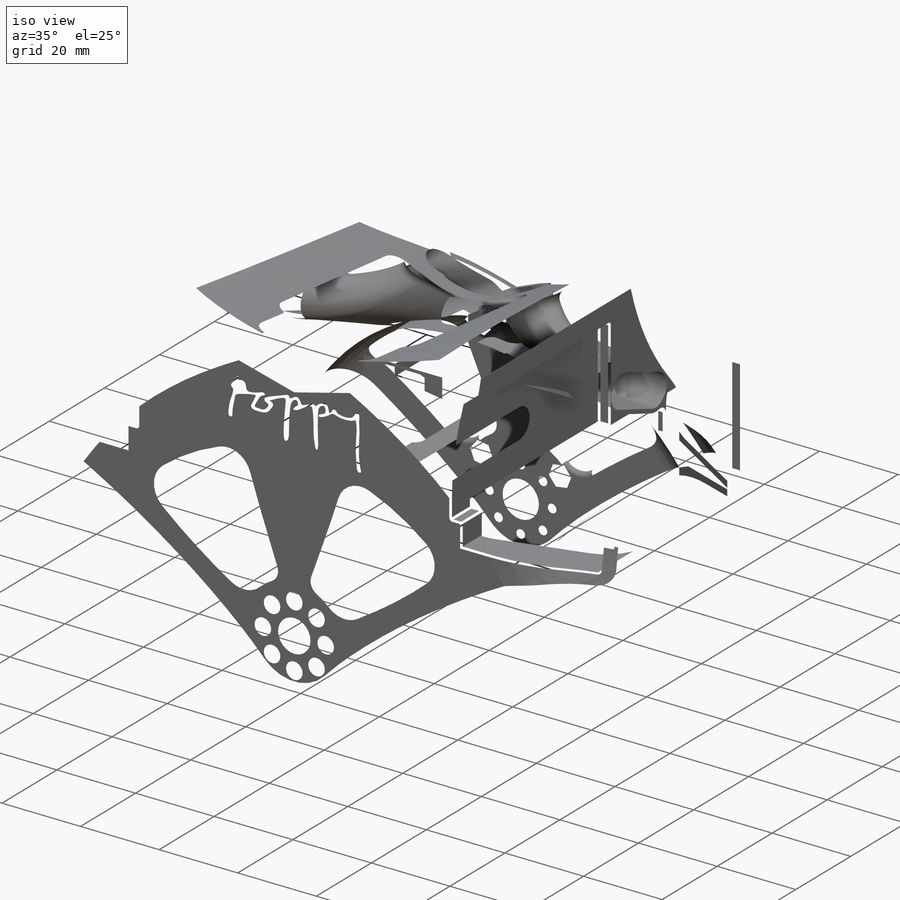
[diagram: iso view]
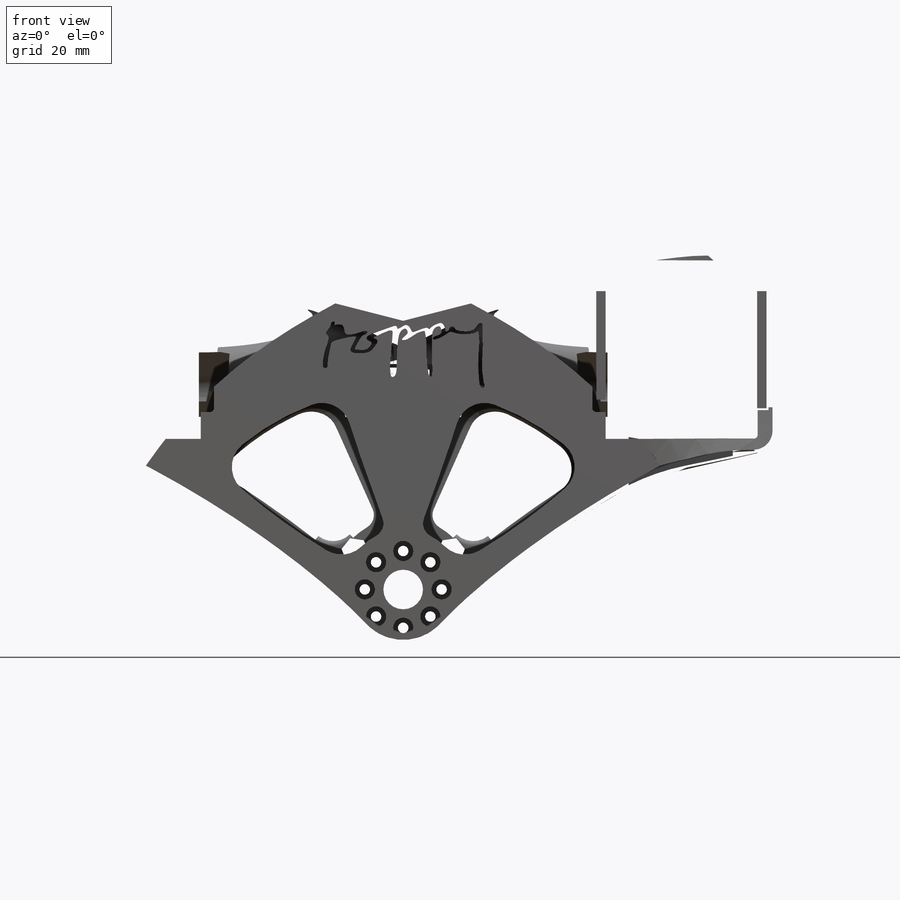
[diagram: front view]
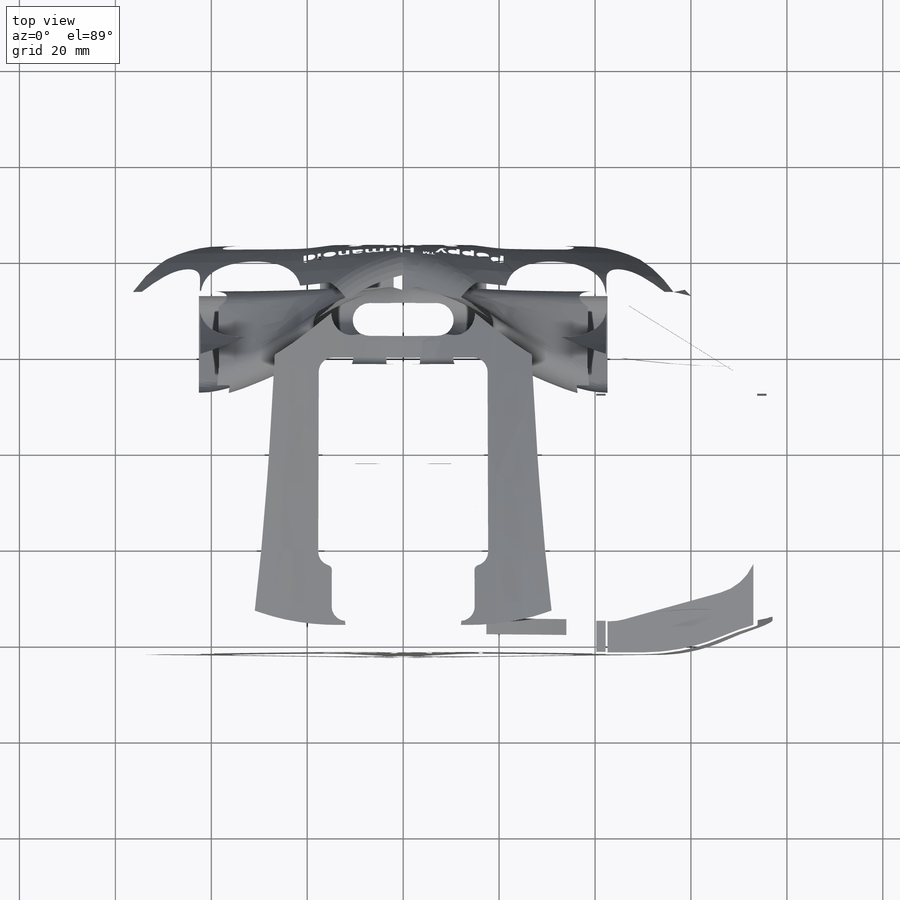
[diagram: top view]
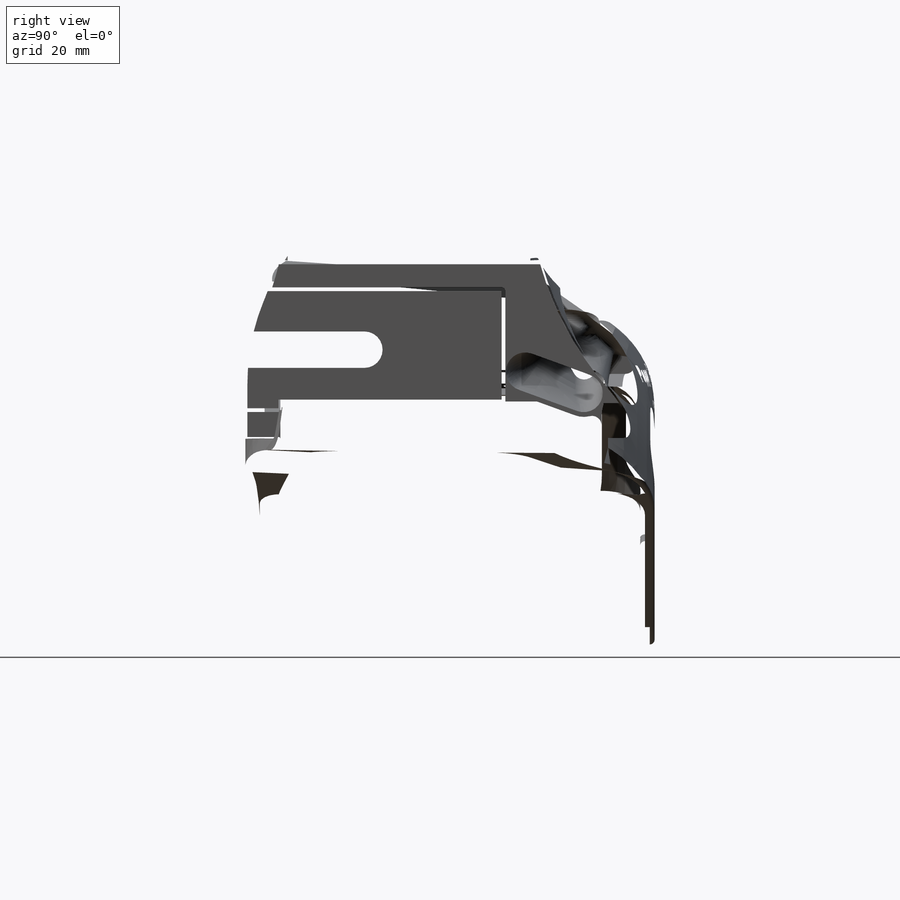
[diagram: right view]
SOLIDWORKS PART (.sldprt)
format: sldprt  version: not decoded by parser v0  size: 12,282,880 bytes
history: native  units: mm
features: sketch x51, fillet x36, plane x25, cut_extrude x21, extrude x6, boolean_combine x5, shell x3, hole x3, chamfer x2, mirror x2, material x1, revolve x1, move_body x1, sweep x1 + 7 further entries (+23 scaffold rows collapsed; 12 parser-record rows omitted)
feature tree (200):
  scaffold x23  (default folders/planes/origin — collapsed)
  material  "Polyamide"
  plane  "Plan de face"
  plane  "Plan de dessus"
  plane  "Plan de droite"
  sketch  "axis_positions"  dims[D1=57.5mm D2=61.5mm D3=50.0mm]
  "shoulder_y_axis"
  "bust_y_rotation_axis"
  plane  "shoulder_motor_middle_plane"  Offset=58mm
  plane  "frontal_rotation_plane"
  plane  "Plane5"  Offset=5mm
  "head_z_rotation_axis"
  plane  "double_rotation_horn_contact"  Offset=79.3mm
  plane  "rotation_limit"  Offset=43mm
  plane  "neck_motor_contact_plane"  Offset=4mm
  sketch  "Esquisse26"  dims[c1.D1=32.0mm c1.D2=1.0mm c1.D3=12.0mm c1.D4=26.3mm c1.D5=39.0mm c2.D2=11.5mm c2.D3=38.5mm c2.D5=36.0mm c3.D3=50.0mm c3.D6=2.0mm c3.D5=1.0mm]
  parser-record x12  (decoder bookkeeping rows leaked as tree rows — omitted from the tree; the rows remain in map.json)
  sketch  "shoulder_motor_front_dimensions"  dims[D7=22.0mm D8=16.0mm D10=2.5mm D16=3.0mm D1=12.0mm D2=50.6mm D3=33.0mm D4=24.4mm D5=35.6mm D6=30.0mm D11=17.0mm D12=17.0mm D13=4.5mm D14=17.0mm D15=35.8mm D9=8.0]
  plane  "shoulder_motor_top_plane"
  sketch  "shoulder_motor_top_dimensions"  dims[D1=4.5mm D2=15.0mm D3=17.75mm]
  sketch  "Sketch23"  dims[D1=4.0mm D2=3.5mm]
  plane  "shoulder_motor_top_contact"  Offset=67mm
  plane  "shoulder_motor_side_contact"  Offset=73mm
  sketch  "Esquisse4"  dims[c1.D1=2.0mm c1.D2=3.0mm c1.D3=11.5mm c2.D1=15.0mm c2.D4=2.0mm]
  revolve  "Révolution2"  Angle=100deg
  sketch  "Esquisse10"  dims[c1.D1=30.0mm c1.D2=35.5mm c1.D3=24.4mm c1.D4=35.6mm c1.D5=0.4mm c2.D1=0.4mm]
  plane  "side_tickness"  Offset=4mm
  sketch  "Esquisse5"  dims[c1.D1=1.5mm c1.D2=1.5mm c2.D1=3.0mm c2.D2=3.0mm c2.D3=12.0mm c2.D4=50.6mm c3.D1=2.0mm c3.D2=1.0mm c4.D1=2.0mm c4.D2=3.0mm]
  extrude  "Boss.-Extru.8"  [1 undecoded]
  sketch  "Esquisse12"  dims[c1.D1=22.0mm c1.D2=17.8mm c2.D1=1.0mm]
  sketch  "Esquisse11"  dims[D1=23.0mm D2=2.0mm]
  cut_extrude  "Enlèv. mat.-Extru.3"  [1 undecoded]
  chamfer  "Chanfrein5"  Distance=3mm Angle=45deg
  boolean_combine  "Combiner3"
  sketch  "3DSketch2"  dims[D1=0.0mm]
  sketch  "3DSketch1"  dims[c1.D2=~58.393343mm c2.D2=50.6mm c3.D2=~58.393343mm c4.D2=50.6mm c4.D1=0.0mm]
  sketch  "3DSketch3"  dims[c1.D1=~58.393343mm c2.D1=50.6mm c3.D1=~58.393343mm c4.D1=50.6mm c5.D1=~118.640761mm]
  sketch  "3DSketch1<5>"
  boolean_combine  "Combine4"
  fillet  "Congé3"  Radius=50mm
  fillet  "Congé4"  Radius=50mm
  fillet  "Congé5"  Radius=30mm
  fillet  "Fillet25"  Radius=30mm
  cut_extrude  "Enlèv. mat.-Extru.4"  [1 undecoded]
  plane  "Plan17"
  sketch  "Sketch5"  dims[D1=8.0mm D2=75.0mm D3=67.0mm D4=26.0mm]
  cut_extrude  "Cut-Extrude8"  Depth=10mm
  sketch  "Esquisse49"  dims[D1=6.0mm D2=1.5mm D3=0.4mm]
  sketch  "Esquisse17"
  cut_extrude  "Enlèv. mat.-Extru.6"  [1 undecoded]
  cut_extrude  "Enlèv. mat.-Extru.5"  Depth=13mm
  cut_extrude  "Enlèv. mat.-Extru.11"  [1 undecoded]
  sketch  "Esquisse50"
  cut_extrude  "Enlèv. mat.-Extru.23"  [1 undecoded]
  plane  "Plan15"  Offset=10mm
  shell  "Coque12"  Thickness=2mm
  sketch  "Sketch4"  dims[D1=0.0mm]
  fillet  "Fillet31"  Radius=40mm
  extrude  "Boss-Extrude2"  [1 undecoded]
  hole  "CBORE for M2.5 Hex Socket Head Cap Screw1"  Diameter=2.7mm Depth=15mm
  sketch  "Esquisse14"
  sketch  "Esquisse13"  dims[hole-wizard template sketch: 27 standard entries collapsed; hole parameters kept: c8.Profondeur du perçage=15.0mm c8.Diamètre du chambrage=5.1mm c8.Profondeur du chambrage=8.35mm c8.Diamètre du fraisage milieu=3.0mm c8.D6=~5.388154mm c8.Angle du fraisage milieu=90.0deg c8.D7=~14.816244mm c8.Angle de pointe=118.0deg]
  fillet  "Fillet3"  Radius=4mm
  fillet  "Congé60"  Radius=2mm
  fillet  "Fillet15"  Radius=7mm
  sketch  "Esquisse34"  dims[c1.D1=5.0mm c1.D2=13.0mm c1.D3=1.5mm c1.D4=5.0mm c2.D1=1.2mm c2.D3=8.0mm c3.D1=11.0mm c3.D5=11.0mm c3.D4=~14.704733mm c4.D4=20.0deg c4.D5=24.4mm c5.D5=90.0deg c6.D5=11.0mm c6.D1=11.0mm c7.D5=0.5mm]
  sketch  "Sketch6"  dims[D1=14.0mm D2=10.0mm]
  sketch  "Sketch2"  dims[c1.D2=13.0mm c1.D1=2.0mm c1.D3=~2.009802mm c2.D3=30.0deg c2.D4=~1.583406mm c2.D1=3.0mm c3.D4=~0.467464mm]
  extrude  "Boss-Extrude1"  Depth=1.4mm
  fillet  "Fillet20"  Radius=0.5mm
  fillet  "Fillet18"  Radius=0.5mm
  fillet  "Fillet19"  Radius=0.5mm
  fillet  "Fillet1"  Radius=1mm
  hole  "Surface-Offset2"  Diameter=0mm
  sketch  "Sketch13"  dims[D1=0.0mm]
  extrude  "Boss-Extrude3"  Depth=4mm
  boolean_combine  "Combine5"
  boolean_combine  "Combine6"
  fillet  "Fillet11"  Radius=10mm
  fillet  "Fillet23"  Radius=0.4mm
  fillet  "Fillet5"  Radius=4mm
  fillet  "Fillet7"  Radius=5mm
  fillet  "Fillet8"  Radius=5mm
  fillet  "Fillet9"  Radius=6mm
  fillet  "Fillet26"  Radius=0.7mm
  fillet  "Fillet10"  Radius=2mm
  plane  "Plane7"
  mirror  "Symétrie4"
  fillet  "Congé30"  [1 undecoded]
  fillet  "Fillet14"  Radius=20mm
  fillet  "Fillet36"  Radius=10mm
  sketch  "Esquisse20"  dims[c1.D1=16.0mm c1.D2=2.0mm c1.D4=~7.093654mm c2.D4=60.0deg c2.D3=8.0]
  sketch  "Esquisse21"  dims[D1=8.25mm]
  cut_extrude  "Enlèv. mat.-Extru.7"  [1 undecoded]
  shell  "CBORE for M2 Hex Socket Head Cap Screw1"  [1 undecoded]
  sketch  "Esquisse24"
  sketch  "Esquisse23"  dims[hole-wizard template sketch: 42 standard entries collapsed; hole parameters kept: c12.Profondeur du perçage jusqu'au prochain=85.3mm c12.Diamètre du chambrage=4.2mm c12.Profondeur du chambrage=1.7mm c12.Diamètre du fraisage milieu=2.4mm c12.D6=~5.388154mm c12.Angle du fraisage milieu=90.0deg]
  sketch  "Sketch1"  dims[D1=0.75mm D2=1.0mm]
  cut_extrude  "Cut-Extrude1"  Depth=1mm
  plane  "Plane1"
  mirror  "Mirror1"
  sketch  "Esquisse28"  dims[c1.D7=2.0mm c1.D1=29.5mm c1.D2=27.0mm c1.D4=16.0mm c1.D5=6.5mm c1.D6=8.0mm c2.D5=6.5mm c2.D3=4.0]
  plane  "Plan11"  Offset=10mm
  shell  "Chambrage pour vis à tête hexagonale M25"  [1 undecoded]
  sketch  "Esquisse32"
  sketch  "Esquisse31"  dims[hole-wizard template sketch: 42 standard entries collapsed; hole parameters kept: c12.Profondeur du perçage jusqu'au prochain=~41.040265mm c12.Diamètre du chambrage=4.0mm c12.Profondeur du chambrage=8.4mm c12.Diamètre du fraisage milieu=2.4mm c12.D6=~5.388154mm c12.Angle du fraisage milieu=90.0deg]
  sketch  "Esquisse33"  dims[c1.D4=12.0mm c1.D1=11.0mm c1.D2=19.7mm c1.D3=20.0mm c1.D5=22.0mm c1.D6=32.5mm c2.D1=11.0mm c2.D2=19.7mm]
  cut_extrude  "Enlèv. mat.-Extru.13"  [1 undecoded]
  fillet  "Fillet27"  Radius=2mm
  fillet  "Fillet28"  Radius=2mm
  fillet  "Fillet29"  Radius=1mm
  sketch  "Esquisse38"  dims[c1.D1=7.0mm c1.D2=11.0mm c2.D2=30.0mm]
  sketch  "Esquisse39"  dims[D1=7.0mm D2=14.0mm]
  fillet  "Fillet30"  Radius=2mm
  "dynamixel_AXseries"
  move_body  "Corps-Déplacer/Copier2"
  "Coïncidente3"
  "Coaxiale3"
  boolean_combine  "Combiner2"
  cut_extrude  "Enlèv. mat.-Extru.16"  Depth=0.75mm
  cut_extrude  "Enlèv. mat.-Extru.17"  [1 undecoded]
  plane  "Plan12"
  sketch  "Esquisse41"  dims[c1.D1=2.0mm c1.D2=1.7mm c1.D3=4.0mm c1.D4=2.0mm c1.D5=12.0mm c2.D3=1.0mm c2.D4=25.0mm]
  extrude  "Boss.-Extru.9"  Depth=1.4mm
  fillet  "Fillet4"  Radius=2mm
  fillet  "Congé46"  Radius=1mm
  fillet  "Congé47"  Radius=0.2mm
  plane  "Plan14"  Offset=2mm
  fillet  "Congé52"  Radius=0.5mm
  sketch  "Esquisse36"  dims[c1.D1=105.0mm c1.D2=27.0mm c1.D3=~36.681358mm c2.D3=20.0deg c2.D4=~39.038592mm c3.D4=25.0deg c3.D3=50.0mm c4.D3=30.0deg c4.D4=50.0mm c5.D4=15.0deg c5.D5=~8.838835mm c6.D5=40.0deg c6.D6=~4.275252mm c7.D6=20.0deg]
  cut_extrude  "Enlèv. mat.-Extru.15"  Depth=10mm
  sketch  "SMPS2Dynamixel"  dims[c1.D1=~3.580314mm c1.D5=3.0mm c2.D1=28.0mm c2.D2=54.0mm c2.D3=12.0mm c2.D4=20.0mm c2.D6=8.0mm]
  sketch  "Sketch9"  dims[c1.D1=10.0mm c1.D2=~49.280604mm c1.D3=7.0mm c1.D4=~2.557367mm c2.D2=8.0mm]
  cut_extrude  "Cut-Extrude10"  Depth=10mm
  fillet  "Congé40"  Radius=5mm
  chamfer  "Chanfrein4"  Distance=0.5mm Angle=45deg
  fillet  "Fillet32"  Radius=1mm
  fillet  "Fillet33"  Radius=1mm
  fillet  "Fillet35"  Radius=0.8mm
  sketch  "Sketch10"  dims[c1.D1=5.0mm c1.D2=~0.013614mm c2.D1=5.0mm]
  cut_extrude  "Cut-Extrude11"  Depth=1.9mm
  sketch  "Sketch11"
  cut_extrude  "Cut-Extrude12"  [1 undecoded]
  plane  "Plane2"  Offset=2mm
  sketch  "Esquisse58"  dims[c1.D1=50.0mm c1.D2=50.0mm c2.D2=30.0deg c2.D3=5.0mm]
  plane  "Plan18"
  sketch  "Esquisse59"  dims[c1.D3=10.0mm c1.D1=32.0mm c1.D2=~24.932572mm c2.D2=15.0deg c2.D3=40.0mm c2.D4=35.0mm]
  plane  "Plan19"
  sketch  "Esquisse60"  dims[D1=12.0mm D2=5.0mm]
  sweep  "Balayage1"
  sketch  "Esquisse61"
  extrude  "Boss.-Extru.10"  [1 undecoded]
  "Symétrie5"
  fillet  "Congé70"  Radius=7mm
  plane  "left_plane"
  plane  "right_plane"
  sketch  "Sketch15"
  cut_extrude  "Poppy_logo"  Depth=1.5mm
  hole  "Surface-Offset3"  Diameter=1mm
  sketch  "watermark"
  cut_extrude  "watermark_Poppy_humanoid"  [1 undecoded]
  sketch  "Sketch20"
  cut_extrude  "opensource_hardware_logo"  Depth=1mm
  sketch  "license"
  cut_extrude  "creative_commons_license"  Depth=1mm
  sketch  "Sketch18"  dims[c1.D1=5.5mm c1.D2=17.0mm c1.D3=~23.942116mm c2.D3=54.0deg]
  cut_extrude  "author_name"  Depth=1mm
decode coverage: 95 of 132 modeling features carry decoded parameters; 7 rows unclassified (native names shown)
note: ~ marks probable driven/reference dimensions
note: 16 parameter values undecoded
summary: no parameter record found for 16 features
note: suppression state not decoded; provenance and decode notes live in map.json
